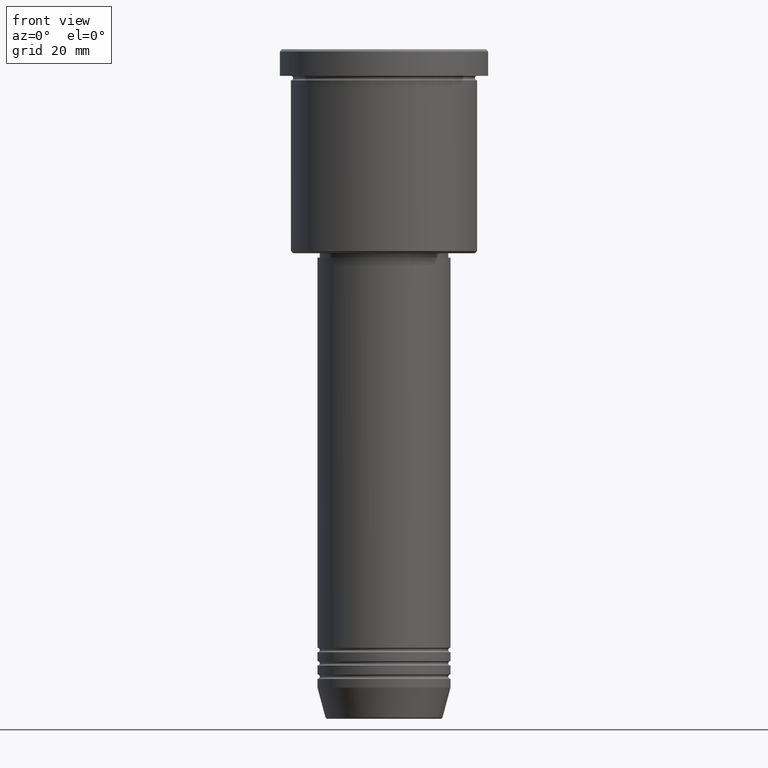
[diagram: clean part render]
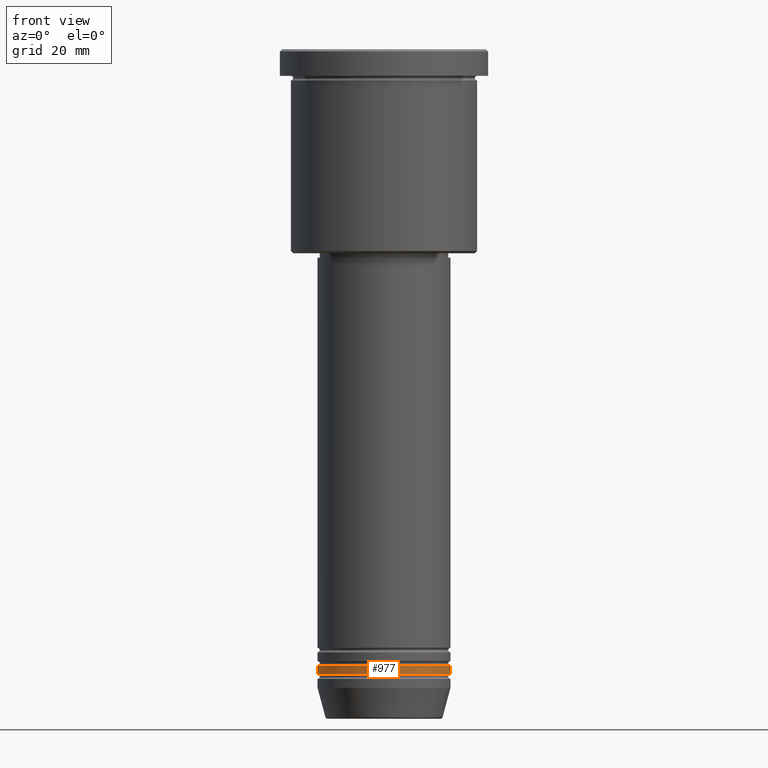
[diagram: same view with one face highlighted and labeled with its STEP entity id]
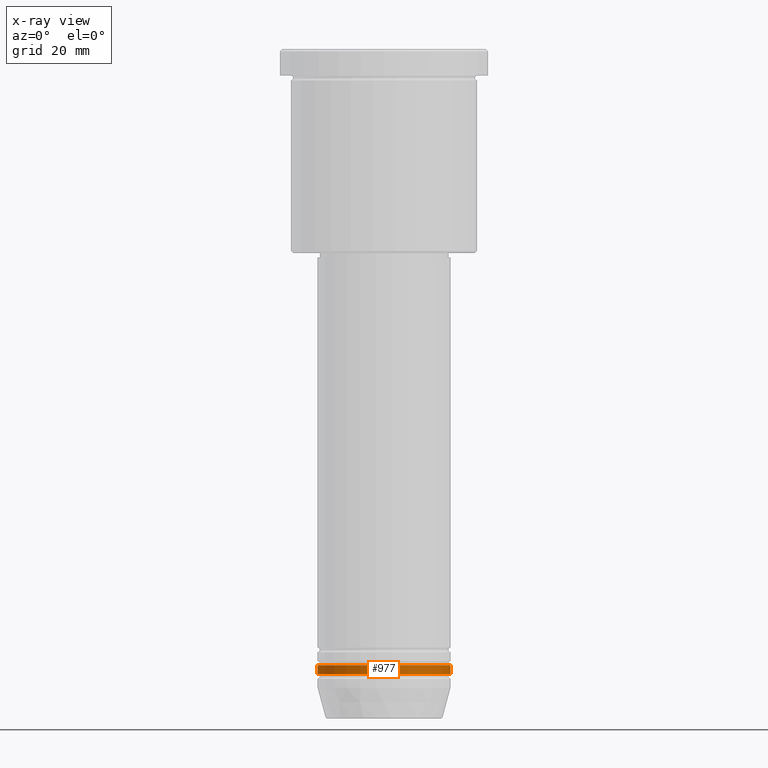
[diagram: x-ray of the same camera — body ghosted, the highlighted face saturated]
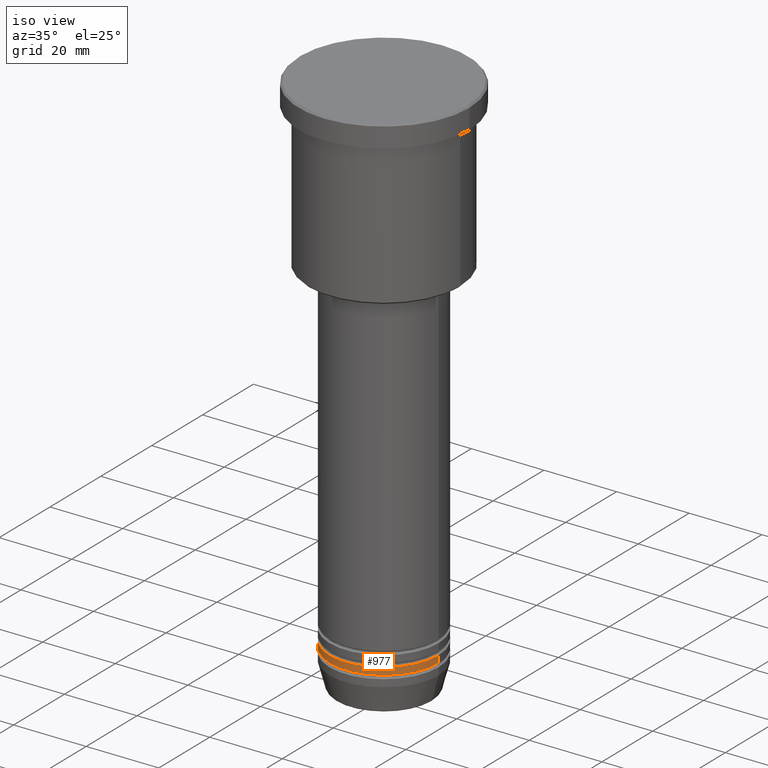
[diagram: same view with one face highlighted and labeled with its STEP entity id]
A machine part, front view. The second image highlights one B-rep face of the part: STEP entity #977.
The next image is the same camera in x-ray: the body ghosted, the highlighted face saturated — about 0% of this face is hidden behind the body in this view.
A second angle (iso view) of the same face is appended — the face is thin or edge-on in the first view.
In plain terms, the highlighted cylindrical surface (partial cylindrical patch) has radius 15 mm, axis along (-0, -0, 1).
Its self-contained STEP definition (entity closure, byte-faithful):
#27 = LINE ( 'NONE', #1121, #576 ) ;
#61 = CARTESIAN_POINT ( 'NONE',  ( 15.00000000000000000, 0.000000000000000000, -140.9999999999999716 ) ) ;
#67 = VERTEX_POINT ( 'NONE', #1142 ) ;
#69 = EDGE_CURVE ( 'NONE', #199, #67, #27, .T. ) ;
#101 = DIRECTION ( 'NONE',  ( -0.000000000000000000, -0.000000000000000000, 1.000000000000000000 ) ) ;
#115 = DIRECTION ( 'NONE',  ( -0.000000000000000000, -0.000000000000000000, 1.000000000000000000 ) ) ;
#185 = VERTEX_POINT ( 'NONE', #724 ) ;
#199 = VERTEX_POINT ( 'NONE', #317 ) ;
#200 = CIRCLE ( 'NONE', #343, 15.00000000000000000 ) ;
#241 = DIRECTION ( 'NONE',  ( 1.000000000000000000, 0.000000000000000000, 0.000000000000000000 ) ) ;
#278 = CARTESIAN_POINT ( 'NONE',  ( 15.00000000000000000, 0.000000000000000000, 0.000000000000000000 ) ) ;
#301 = ORIENTED_EDGE ( 'NONE', *, *, #69, .F. ) ;
#317 = CARTESIAN_POINT ( 'NONE',  ( -15.00000000000000000, 1.836970198721029589E-15, -140.9999999999999716 ) ) ;
#343 = AXIS2_PLACEMENT_3D ( 'NONE', #792, #929, #960 ) ;
#383 = CIRCLE ( 'NONE', #1008, 15.00000000000000000 ) ;
#393 = EDGE_CURVE ( 'NONE', #199, #902, #383, .T. ) ;
#437 = CARTESIAN_POINT ( 'NONE',  ( 0.000000000000000000, 0.000000000000000000, 0.000000000000000000 ) ) ;
#447 = DIRECTION ( 'NONE',  ( -0.000000000000000000, -0.000000000000000000, 1.000000000000000000 ) ) ;
#471 = AXIS2_PLACEMENT_3D ( 'NONE', #437, #447, #241 ) ;
#478 = LINE ( 'NONE', #278, #602 ) ;
#482 = ORIENTED_EDGE ( 'NONE', *, *, #867, .F. ) ;
#576 = VECTOR ( 'NONE', #115, 1000.000000000000000 ) ;
#602 = VECTOR ( 'NONE', #101, 1000.000000000000000 ) ;
#631 = FACE_OUTER_BOUND ( 'NONE', #1149, .T. ) ;
#724 = CARTESIAN_POINT ( 'NONE',  ( 15.00000000000000000, 0.000000000000000000, -138.9999999999999432 ) ) ;
#735 = ORIENTED_EDGE ( 'NONE', *, *, #393, .T. ) ;
#792 = CARTESIAN_POINT ( 'NONE',  ( 0.000000000000000000, 0.000000000000000000, -138.9999999999999432 ) ) ;
#814 = ORIENTED_EDGE ( 'NONE', *, *, #911, .T. ) ;
#867 = EDGE_CURVE ( 'NONE', #67, #185, #200, .T. ) ;
#902 = VERTEX_POINT ( 'NONE', #61 ) ;
#911 = EDGE_CURVE ( 'NONE', #902, #185, #478, .T. ) ;
#929 = DIRECTION ( 'NONE',  ( -0.000000000000000000, -0.000000000000000000, 1.000000000000000000 ) ) ;
#960 = DIRECTION ( 'NONE',  ( 1.000000000000000000, 0.000000000000000000, 0.000000000000000000 ) ) ;
#963 = DIRECTION ( 'NONE',  ( 1.000000000000000000, 0.000000000000000000, 0.000000000000000000 ) ) ;
#977 = ADVANCED_FACE ( 'NONE', ( #631 ), #1064, .T. ) ;
#1008 = AXIS2_PLACEMENT_3D ( 'NONE', #1055, #1074, #963 ) ;
#1055 = CARTESIAN_POINT ( 'NONE',  ( 0.000000000000000000, 0.000000000000000000, -140.9999999999999716 ) ) ;
#1064 = CYLINDRICAL_SURFACE ( 'NONE', #471, 15.00000000000000000 ) ;
#1074 = DIRECTION ( 'NONE',  ( -0.000000000000000000, -0.000000000000000000, 1.000000000000000000 ) ) ;
#1121 = CARTESIAN_POINT ( 'NONE',  ( -15.00000000000000000, 1.836970198721029589E-15, 0.000000000000000000 ) ) ;
#1142 = CARTESIAN_POINT ( 'NONE',  ( -15.00000000000000000, 1.836970198721029589E-15, -138.9999999999999432 ) ) ;
#1149 = EDGE_LOOP ( 'NONE', ( #301, #735, #814, #482 ) ) ;